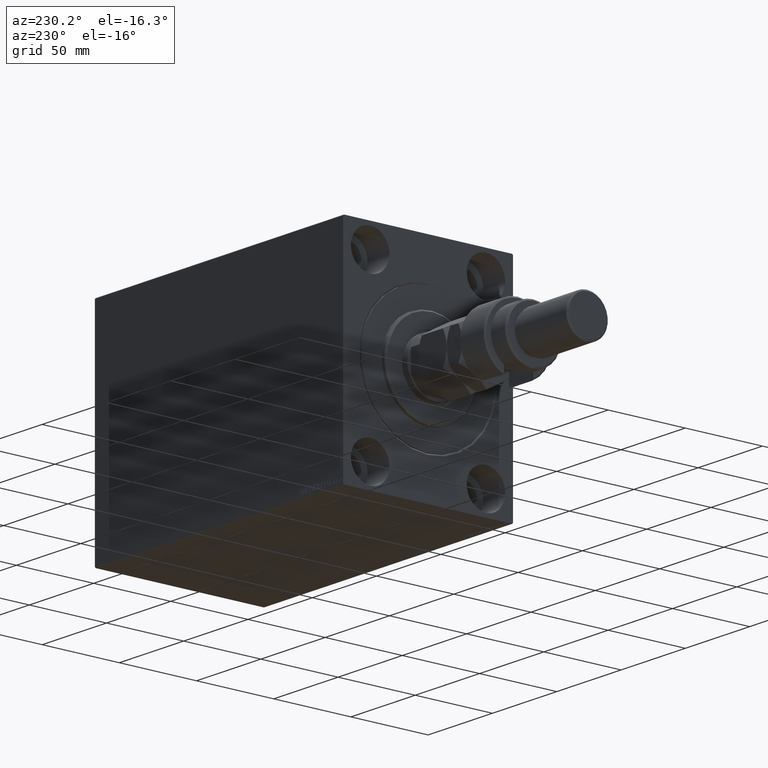
[diagram: clean part render]
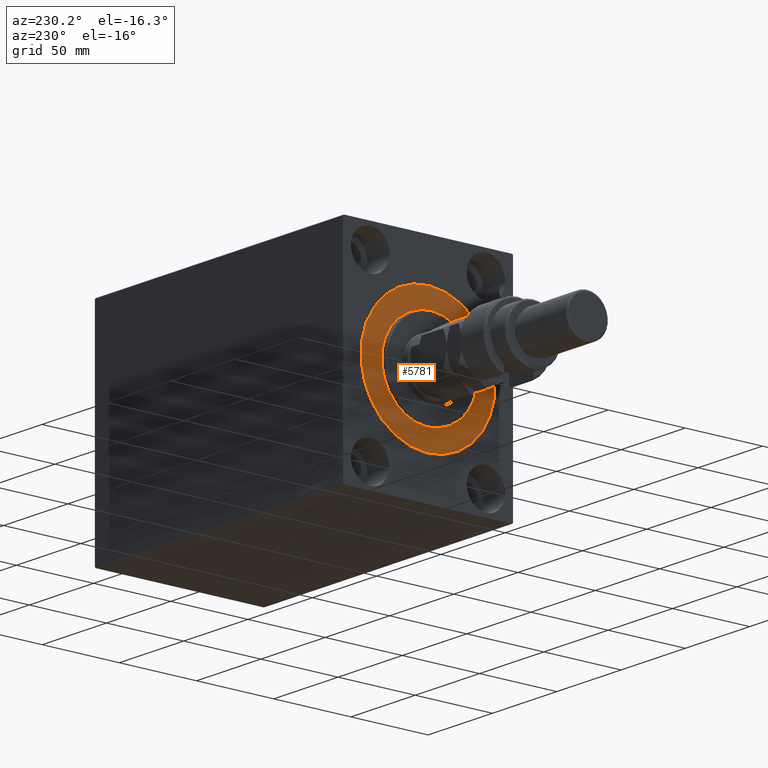
[diagram: same view with one face highlighted and labeled with its STEP entity id]
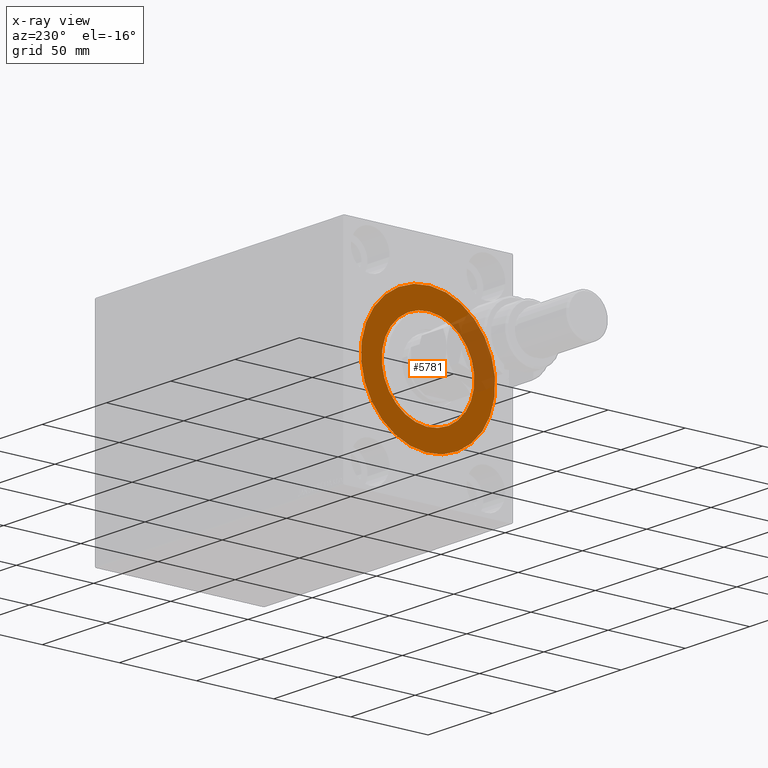
[diagram: x-ray of the same camera — body ghosted, the highlighted face saturated]
A machine part, auxiliary view. The second image highlights one B-rep face of the part: STEP entity #5781.
The next image is the same camera in x-ray: the body ghosted, the highlighted face saturated — about 17% of this face is hidden behind the body in this view.
In plain terms, the highlighted planar face has unit normal (1, 0, -0).
Its self-contained STEP definition (entity closure, byte-faithful):
#993 = CIRCLE ( 'NONE', #24351, 43.50000000000000000 ) ;
#1307 = ORIENTED_EDGE ( 'NONE', *, *, #6012, .F. ) ;
#5781 = ADVANCED_FACE ( 'NONE', ( #24185, #38600 ), #27957, .F. ) ;
#6012 = EDGE_CURVE ( 'NONE', #10365, #38801, #22157, .T. ) ;
#6275 = CARTESIAN_POINT ( 'NONE',  ( 0.000000000000000000, 0.000000000000000000, 0.000000000000000000 ) ) ;
#7844 = DIRECTION ( 'NONE',  ( 1.000000000000000000, -0.000000000000000000, 0.000000000000000000 ) ) ;
#8261 = EDGE_LOOP ( 'NONE', ( #23735, #22052 ) ) ;
#10223 = AXIS2_PLACEMENT_3D ( 'NONE', #36058, #10581, #28270 ) ;
#10365 = VERTEX_POINT ( 'NONE', #39421 ) ;
#10451 = CARTESIAN_POINT ( 'NONE',  ( 0.000000000000000000, 0.000000000000000000, 0.000000000000000000 ) ) ;
#10581 = DIRECTION ( 'NONE',  ( 1.000000000000000000, -0.000000000000000000, 0.000000000000000000 ) ) ;
#11523 = ORIENTED_EDGE ( 'NONE', *, *, #13064, .F. ) ;
#12685 = DIRECTION ( 'NONE',  ( 0.000000000000000000, 0.000000000000000000, 1.000000000000000000 ) ) ;
#13064 = EDGE_CURVE ( 'NONE', #38801, #10365, #41867, .T. ) ;
#14211 = DIRECTION ( 'NONE',  ( 0.000000000000000000, 0.000000000000000000, 1.000000000000000000 ) ) ;
#14377 = CARTESIAN_POINT ( 'NONE',  ( 0.000000000000000000, 5.327213576290986044E-15, 43.50000000000000000 ) ) ;
#14448 = DIRECTION ( 'NONE',  ( 0.000000000000000000, 0.000000000000000000, -1.000000000000000000 ) ) ;
#16994 = VERTEX_POINT ( 'NONE', #14377 ) ;
#18207 = CARTESIAN_POINT ( 'NONE',  ( 0.000000000000000000, 0.000000000000000000, 0.000000000000000000 ) ) ;
#19442 = EDGE_CURVE ( 'NONE', #19586, #16994, #26169, .T. ) ;
#19586 = VERTEX_POINT ( 'NONE', #30466 ) ;
#19852 = AXIS2_PLACEMENT_3D ( 'NONE', #6275, #20636, #45927 ) ;
#20204 = CARTESIAN_POINT ( 'NONE',  ( 0.000000000000000000, 0.000000000000000000, 0.000000000000000000 ) ) ;
#20636 = DIRECTION ( 'NONE',  ( -1.000000000000000000, 0.000000000000000000, 0.000000000000000000 ) ) ;
#22052 = ORIENTED_EDGE ( 'NONE', *, *, #43484, .F. ) ;
#22157 = CIRCLE ( 'NONE', #22910, 30.00000000000000000 ) ;
#22910 = AXIS2_PLACEMENT_3D ( 'NONE', #18207, #7844, #14448 ) ;
#23735 = ORIENTED_EDGE ( 'NONE', *, *, #19442, .F. ) ;
#24185 = FACE_BOUND ( 'NONE', #37362, .T. ) ;
#24351 = AXIS2_PLACEMENT_3D ( 'NONE', #20204, #45026, #12685 ) ;
#26169 = CIRCLE ( 'NONE', #35980, 43.50000000000000000 ) ;
#27957 = PLANE ( 'NONE',  #19852 ) ;
#28270 = DIRECTION ( 'NONE',  ( 0.000000000000000000, 0.000000000000000000, -1.000000000000000000 ) ) ;
#30466 = CARTESIAN_POINT ( 'NONE',  ( 0.000000000000000000, 0.000000000000000000, -43.50000000000000000 ) ) ;
#32056 = CARTESIAN_POINT ( 'NONE',  ( 0.000000000000000000, 3.673940397442059178E-15, -30.00000000000000000 ) ) ;
#35980 = AXIS2_PLACEMENT_3D ( 'NONE', #10451, #46565, #14211 ) ;
#36058 = CARTESIAN_POINT ( 'NONE',  ( 0.000000000000000000, 0.000000000000000000, 0.000000000000000000 ) ) ;
#37362 = EDGE_LOOP ( 'NONE', ( #1307, #11523 ) ) ;
#38600 = FACE_OUTER_BOUND ( 'NONE', #8261, .T. ) ;
#38801 = VERTEX_POINT ( 'NONE', #32056 ) ;
#39421 = CARTESIAN_POINT ( 'NONE',  ( 0.000000000000000000, 0.000000000000000000, 30.00000000000000000 ) ) ;
#41867 = CIRCLE ( 'NONE', #10223, 30.00000000000000000 ) ;
#43484 = EDGE_CURVE ( 'NONE', #16994, #19586, #993, .T. ) ;
#45026 = DIRECTION ( 'NONE',  ( -1.000000000000000000, 0.000000000000000000, 0.000000000000000000 ) ) ;
#45927 = DIRECTION ( 'NONE',  ( 0.000000000000000000, 0.000000000000000000, 1.000000000000000000 ) ) ;
#46565 = DIRECTION ( 'NONE',  ( -1.000000000000000000, 0.000000000000000000, 0.000000000000000000 ) ) ;